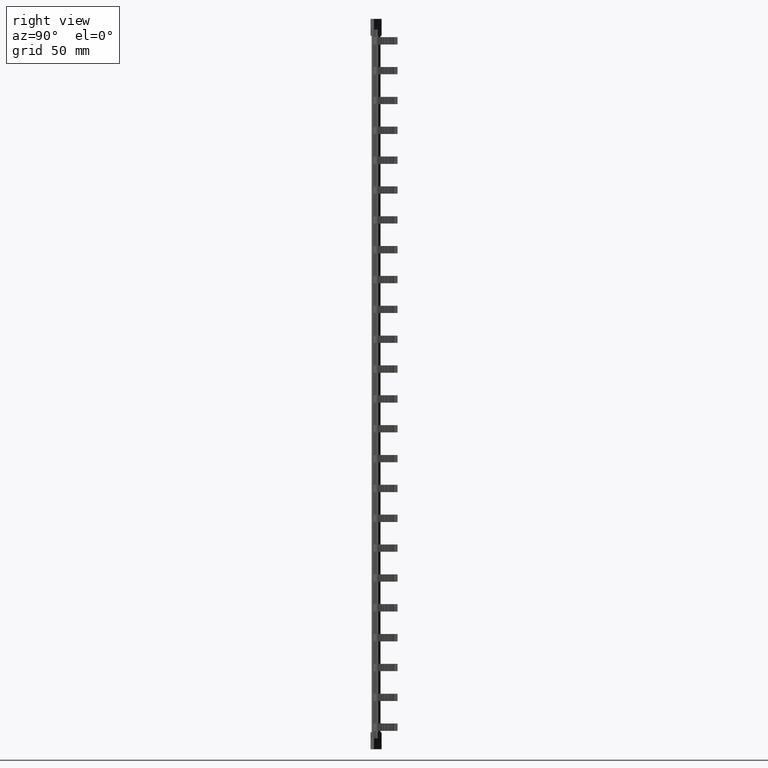
[diagram: clean part render]
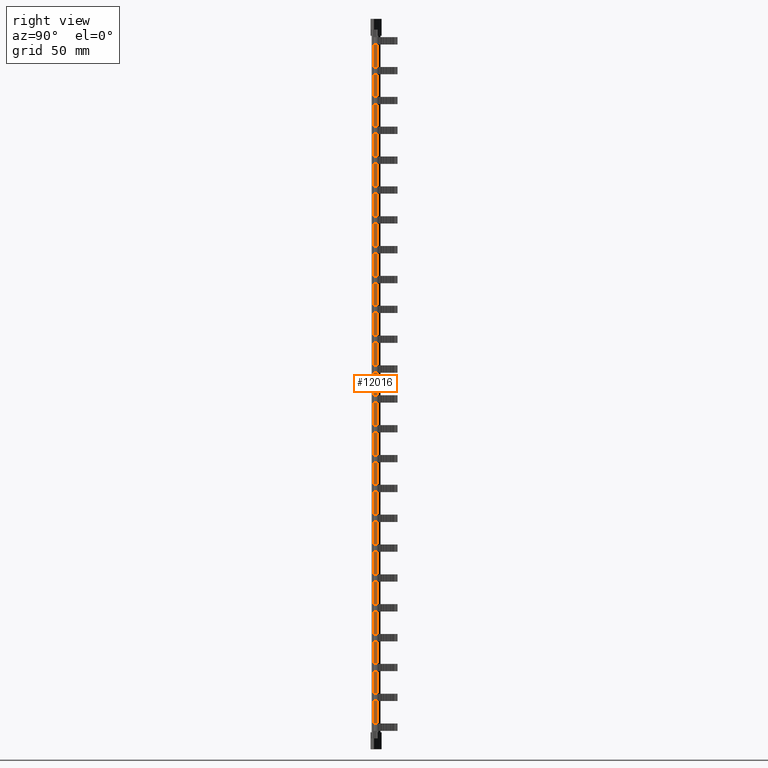
[diagram: same view with one face highlighted and labeled with its STEP entity id]
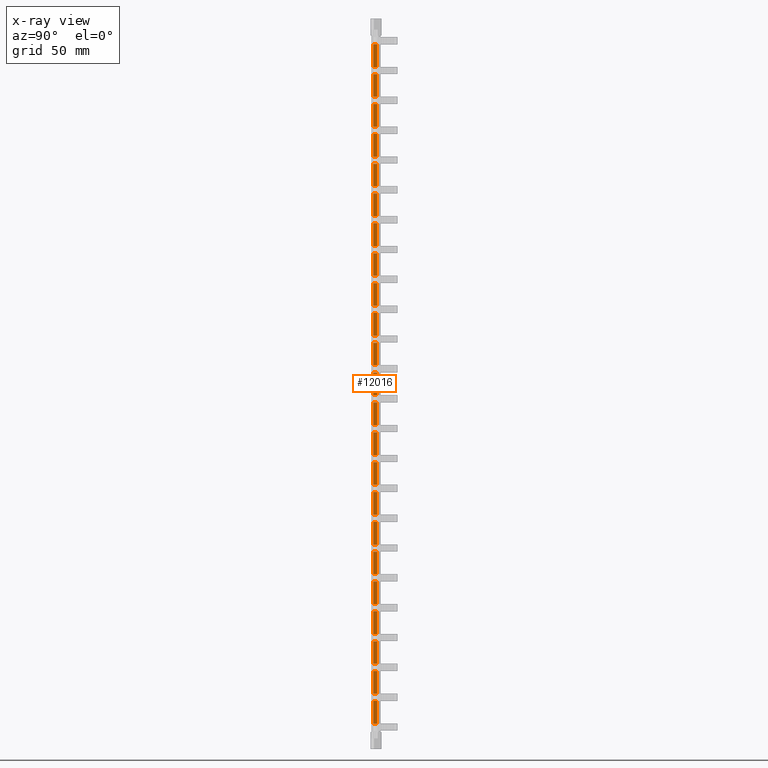
[diagram: x-ray of the same camera — body ghosted, the highlighted face saturated]
A machine part, right view. The second image highlights one B-rep face of the part: STEP entity #12016.
The next image is the same camera in x-ray: the body ghosted, the highlighted face saturated — about 0% of this face is hidden behind the body in this view.
In plain terms, the highlighted planar face has unit normal (-1, 0, 0).
Its self-contained STEP definition (entity closure, byte-faithful):
#585 = EDGE_CURVE ( 'NONE', #30921, #30993, #25465, .T. ) ;
#597 = EDGE_CURVE ( 'NONE', #28110, #31010, #25457, .T. ) ;
#607 = EDGE_CURVE ( 'NONE', #30948, #30979, #25491, .T. ) ;
#623 = EDGE_CURVE ( 'NONE', #30917, #30931, #25641, .T. ) ;
#624 = EDGE_CURVE ( 'NONE', #31019, #30921, #25618, .T. ) ;
#635 = EDGE_CURVE ( 'NONE', #31010, #30959, #25601, .T. ) ;
#636 = EDGE_CURVE ( 'NONE', #30980, #30937, #25694, .T. ) ;
#637 = EDGE_CURVE ( 'NONE', #30983, #30929, #25658, .T. ) ;
#641 = EDGE_CURVE ( 'NONE', #30993, #30990, #25646, .T. ) ;
#666 = EDGE_CURVE ( 'NONE', #30937, #30933, #25910, .T. ) ;
#668 = EDGE_CURVE ( 'NONE', #30979, #30917, #25875, .T. ) ;
#669 = EDGE_CURVE ( 'NONE', #30923, #30983, #25850, .T. ) ;
#672 = EDGE_CURVE ( 'NONE', #30999, #30934, #25907, .T. ) ;
#674 = EDGE_CURVE ( 'NONE', #30955, #30956, #25919, .T. ) ;
#675 = EDGE_CURVE ( 'NONE', #30940, #30939, #25848, .T. ) ;
#688 = EDGE_CURVE ( 'NONE', #30929, #30963, #25988, .T. ) ;
#691 = EDGE_CURVE ( 'NONE', #31026, #30954, #25954, .T. ) ;
#694 = EDGE_CURVE ( 'NONE', #30954, #30972, #25943, .T. ) ;
#701 = EDGE_CURVE ( 'NONE', #30956, #30940, #26026, .T. ) ;
#702 = EDGE_CURVE ( 'NONE', #30957, #30919, #26075, .T. ) ;
#711 = EDGE_CURVE ( 'NONE', #30941, #30961, #26168, .T. ) ;
#715 = EDGE_CURVE ( 'NONE', #31003, #30974, #26122, .T. ) ;
#717 = EDGE_CURVE ( 'NONE', #30934, #30941, #26206, .T. ) ;
#720 = EDGE_CURVE ( 'NONE', #30697, #30729, #26115, .T. ) ;
#725 = EDGE_CURVE ( 'NONE', #31023, #30925, #26224, .T. ) ;
#726 = EDGE_CURVE ( 'NONE', #30994, #31020, #26265, .T. ) ;
#727 = EDGE_CURVE ( 'NONE', #30655, #30707, #26289, .T. ) ;
#729 = EDGE_CURVE ( 'NONE', #30919, #30920, #26274, .T. ) ;
#735 = EDGE_CURVE ( 'NONE', #30972, #30938, #26259, .T. ) ;
#736 = EDGE_CURVE ( 'NONE', #30974, #30978, #26215, .T. ) ;
#738 = EDGE_CURVE ( 'NONE', #30967, #30966, #26254, .T. ) ;
#741 = EDGE_CURVE ( 'NONE', #31016, #30965, #26343, .T. ) ;
#743 = EDGE_CURVE ( 'NONE', #30933, #30949, #26341, .T. ) ;
#745 = EDGE_CURVE ( 'NONE', #30925, #30976, #26327, .T. ) ;
#747 = EDGE_CURVE ( 'NONE', #30978, #30945, #26334, .T. ) ;
#749 = EDGE_CURVE ( 'NONE', #30989, #30957, #26378, .T. ) ;
#751 = EDGE_CURVE ( 'NONE', #30927, #31023, #26308, .T. ) ;
#754 = EDGE_CURVE ( 'NONE', #30707, #31025, #26414, .T. ) ;
#760 = EDGE_CURVE ( 'NONE', #30973, #30975, #26464, .T. ) ;
#762 = EDGE_CURVE ( 'NONE', #31002, #30992, #26469, .T. ) ;
#763 = EDGE_CURVE ( 'NONE', #30704, #30655, #26482, .T. ) ;
#766 = EDGE_CURVE ( 'NONE', #30730, #30722, #26555, .T. ) ;
#769 = EDGE_CURVE ( 'NONE', #30654, #30701, #26485, .T. ) ;
#771 = EDGE_CURVE ( 'NONE', #30656, #30718, #26558, .T. ) ;
#772 = EDGE_CURVE ( 'NONE', #30702, #30679, #26487, .T. ) ;
#776 = EDGE_CURVE ( 'NONE', #30725, #30708, #26560, .T. ) ;
#777 = EDGE_CURVE ( 'NONE', #30726, #30686, #26569, .T. ) ;
#782 = EDGE_CURVE ( 'NONE', #30992, #30967, #26498, .T. ) ;
#787 = EDGE_CURVE ( 'NONE', #30709, #30621, #26596, .T. ) ;
#797 = EDGE_CURVE ( 'NONE', #30690, #30728, #25140, .T. ) ;
#798 = EDGE_CURVE ( 'NONE', #30995, #30987, #25145, .T. ) ;
#801 = EDGE_CURVE ( 'NONE', #30729, #30714, #25152, .T. ) ;
#803 = EDGE_CURVE ( 'NONE', #30700, #30727, #25141, .T. ) ;
#808 = EDGE_CURVE ( 'NONE', #30701, #30706, #25123, .T. ) ;
#811 = EDGE_CURVE ( 'NONE', #30692, #30702, #25132, .T. ) ;
#818 = EDGE_CURVE ( 'NONE', #30975, #31016, #25195, .T. ) ;
#820 = EDGE_CURVE ( 'NONE', #30706, #30684, #25169, .T. ) ;
#821 = EDGE_CURVE ( 'NONE', #30693, #30697, #25202, .T. ) ;
#822 = EDGE_CURVE ( 'NONE', #31020, #30995, #25205, .T. ) ;
#823 = EDGE_CURVE ( 'NONE', #30708, #30724, #25176, .T. ) ;
#828 = EDGE_CURVE ( 'NONE', #30653, #30719, #25230, .T. ) ;
#831 = EDGE_CURVE ( 'NONE', #30722, #22495, #25245, .T. ) ;
#838 = EDGE_CURVE ( 'NONE', #30686, #30709, #25297, .T. ) ;
#841 = EDGE_CURVE ( 'NONE', #30720, #30688, #25261, .T. ) ;
#855 = EDGE_CURVE ( 'NONE', #30718, #30690, #25316, .T. ) ;
#859 = EDGE_CURVE ( 'NONE', #30724, #30715, #25343, .T. ) ;
#874 = EDGE_CURVE ( 'NONE', #30695, #30732, #34278, .T. ) ;
#880 = EDGE_CURVE ( 'NONE', #30679, #30683, #34274, .T. ) ;
#881 = EDGE_CURVE ( 'NONE', #30719, #30700, #34359, .T. ) ;
#884 = EDGE_CURVE ( 'NONE', #30732, #30720, #34346, .T. ) ;
#1071 = CARTESIAN_POINT ( 'NONE',  ( 10.37430495582721900, 3.100000585347644200, 209.0000000000000000 ) ) ;
#1096 = CARTESIAN_POINT ( 'NONE',  ( 10.37430495582721900, 3.100000585347644200, -199.9999999999999100 ) ) ;
#1128 = CARTESIAN_POINT ( 'NONE',  ( 10.37430495582721900, 1.100000111734499500, -142.9500000000000200 ) ) ;
#1129 = CARTESIAN_POINT ( 'NONE',  ( 10.37430495582721900, 1.100000111734499500, -19.74999999999998900 ) ) ;
#1133 = CARTESIAN_POINT ( 'NONE',  ( 10.37430495582721900, 1.100000111734499500, -59.25000000000001400 ) ) ;
#1135 = CARTESIAN_POINT ( 'NONE',  ( 10.37430495582721900, 1.100000111734499500, -178.1500000000000300 ) ) ;
#1140 = CARTESIAN_POINT ( 'NONE',  ( 10.37430495582721900, 3.092390552839102500, -178.1500000000000300 ) ) ;
#1142 = CARTESIAN_POINT ( 'NONE',  ( 10.37430495582721900, 1.100000111734499500, -125.3500000000000200 ) ) ;
#1146 = CARTESIAN_POINT ( 'NONE',  ( 10.37430495582721900, 1.100000111734499500, -94.45000000000001700 ) ) ;
#1148 = CARTESIAN_POINT ( 'NONE',  ( 10.37430495582721900, 3.092390552839102500, -107.7500000000000100 ) ) ;
#1149 = CARTESIAN_POINT ( 'NONE',  ( 10.37430495582721900, 3.092390552839102500, -125.3500000000000200 ) ) ;
#1156 = CARTESIAN_POINT ( 'NONE',  ( 10.37430495582721900, 1.100000111734499500, -107.7500000000000100 ) ) ;
#1163 = CARTESIAN_POINT ( 'NONE',  ( 10.37430495582721900, 3.092390552839102500, -37.34999999999999400 ) ) ;
#1164 = CARTESIAN_POINT ( 'NONE',  ( 10.37430495582721900, 3.092390552839102500, -76.85000000000002300 ) ) ;
#1167 = CARTESIAN_POINT ( 'NONE',  ( 10.37430495582721900, 1.100000111734499500, -37.34999999999999400 ) ) ;
#1168 = CARTESIAN_POINT ( 'NONE',  ( 10.37430495582721900, 3.092390552839102500, -90.15000000000000600 ) ) ;
#1171 = CARTESIAN_POINT ( 'NONE',  ( 10.37430495582721900, 3.092390552839102500, -112.0500000000000300 ) ) ;
#1181 = CARTESIAN_POINT ( 'NONE',  ( 10.37430495582721900, 1.100000111734499500, -182.4500000000000500 ) ) ;
#1184 = CARTESIAN_POINT ( 'NONE',  ( 10.37430495582721900, 3.092390552839102500, -54.94999999999999600 ) ) ;
#1186 = CARTESIAN_POINT ( 'NONE',  ( 10.37430495582721900, 3.092390552839102500, -72.54999999999999700 ) ) ;
#1190 = CARTESIAN_POINT ( 'NONE',  ( 10.37430495582721900, 3.092390552839102500, -164.8499999999999900 ) ) ;
#1192 = CARTESIAN_POINT ( 'NONE',  ( 10.37430495582721900, 3.092390552839102500, -19.74999999999998900 ) ) ;
#1193 = CARTESIAN_POINT ( 'NONE',  ( 10.37430495582721900, 3.092390552839102500, -41.65000000000000600 ) ) ;
#1195 = CARTESIAN_POINT ( 'NONE',  ( 10.37430495582721900, 1.100000111734499500, 11.14999999999997900 ) ) ;
#1196 = CARTESIAN_POINT ( 'NONE',  ( 10.37430495582721900, 3.092390552839102500, 28.74999999999998200 ) ) ;
#1197 = CARTESIAN_POINT ( 'NONE',  ( 10.37430495582721900, 1.100000111734499500, 33.04999999999999700 ) ) ;
#1202 = CARTESIAN_POINT ( 'NONE',  ( 10.37430495582721900, 1.100000111734499500, -2.149999999999985300 ) ) ;
#1203 = CARTESIAN_POINT ( 'NONE',  ( 10.37430495582721900, 1.100000111734499500, -6.449999999999997500 ) ) ;
#1204 = CARTESIAN_POINT ( 'NONE',  ( 10.37430495582721900, 1.100000111734499500, -129.6499999999999800 ) ) ;
#1206 = CARTESIAN_POINT ( 'NONE',  ( 10.37430495582721900, 3.092390552839102500, -6.449999999999997500 ) ) ;
#1207 = CARTESIAN_POINT ( 'NONE',  ( 10.37430495582721900, 3.092390552839102500, 15.44999999999999200 ) ) ;
#1209 = CARTESIAN_POINT ( 'NONE',  ( 10.37430495582721900, 1.100000111734499500, -76.85000000000000900 ) ) ;
#1210 = CARTESIAN_POINT ( 'NONE',  ( 10.37430495582721900, 1.100000111734499500, -90.15000000000000600 ) ) ;
#1211 = CARTESIAN_POINT ( 'NONE',  ( 10.37430495582721900, 1.100000111734499500, -160.5500000000000400 ) ) ;
#1212 = CARTESIAN_POINT ( 'NONE',  ( 10.37430495582721900, 3.092390552839102500, -2.149999999999985300 ) ) ;
#1213 = CARTESIAN_POINT ( 'NONE',  ( 10.37430495582721900, 3.092390552839102500, 33.04999999999999700 ) ) ;
#1218 = CARTESIAN_POINT ( 'NONE',  ( 10.37430495582721900, 3.092390552839102500, -24.05000000000000100 ) ) ;
#1220 = CARTESIAN_POINT ( 'NONE',  ( 10.37430495582721900, 1.100000111734499500, -41.65000000000000600 ) ) ;
#1221 = CARTESIAN_POINT ( 'NONE',  ( 10.37430495582721900, 3.092390552839102500, -160.5500000000000400 ) ) ;
#1222 = CARTESIAN_POINT ( 'NONE',  ( 10.37430495582721900, 1.100000111734499500, -72.54999999999999700 ) ) ;
#1223 = CARTESIAN_POINT ( 'NONE',  ( 10.37430495582721900, 1.100000111734499500, 28.74999999999998200 ) ) ;
#1224 = CARTESIAN_POINT ( 'NONE',  ( 10.37430495582721900, 3.092390552839102500, -147.2500000000000600 ) ) ;
#1225 = CARTESIAN_POINT ( 'NONE',  ( 10.37430495582721900, 1.100000111734499500, -112.0500000000000300 ) ) ;
#1226 = CARTESIAN_POINT ( 'NONE',  ( 10.37430495582721900, 3.092390552839102500, 11.14999999999997900 ) ) ;
#1227 = CARTESIAN_POINT ( 'NONE',  ( 10.37430495582721900, 3.092390552839102500, -195.7500000000000300 ) ) ;
#1228 = CARTESIAN_POINT ( 'NONE',  ( 10.37430495582721900, 3.092390552839102500, -94.45000000000001700 ) ) ;
#1230 = CARTESIAN_POINT ( 'NONE',  ( 10.37430495582721900, 1.100000111734499500, -147.2500000000000600 ) ) ;
#1231 = CARTESIAN_POINT ( 'NONE',  ( 10.37430495582721900, 3.092390552839102500, -142.9500000000000200 ) ) ;
#1233 = CARTESIAN_POINT ( 'NONE',  ( 10.37430495582721900, 3.092390552839102500, -129.6499999999999800 ) ) ;
#1236 = CARTESIAN_POINT ( 'NONE',  ( 10.37430495582721900, 3.092390552839102500, -182.4500000000000500 ) ) ;
#1237 = CARTESIAN_POINT ( 'NONE',  ( 10.37430495582721900, 3.092390552839102500, -59.25000000000001400 ) ) ;
#1239 = CARTESIAN_POINT ( 'NONE',  ( 10.37430495582721900, 1.100000111734499500, 50.64999999999999900 ) ) ;
#1243 = CARTESIAN_POINT ( 'NONE',  ( 10.37430495582721900, 1.100000111734499500, 15.44999999999999200 ) ) ;
#1246 = CARTESIAN_POINT ( 'NONE',  ( 10.37430495582721900, 1.100000111734499500, -24.05000000000000100 ) ) ;
#1253 = CARTESIAN_POINT ( 'NONE',  ( 10.37430495582721900, 1.100000111734499500, -164.8499999999999900 ) ) ;
#1254 = CARTESIAN_POINT ( 'NONE',  ( 10.37430495582721900, 1.100000111734499500, -195.7500000000000300 ) ) ;
#1255 = CARTESIAN_POINT ( 'NONE',  ( 10.37430495582721900, 1.100000111734499500, -54.94999999999999600 ) ) ;
#1488 = CARTESIAN_POINT ( 'NONE',  ( 10.37430495582721900, 1.100000111734499500, 191.4500000000000200 ) ) ;
#1497 = CARTESIAN_POINT ( 'NONE',  ( 10.37430495582721900, 3.092390552839102500, 99.15000000000003400 ) ) ;
#1500 = CARTESIAN_POINT ( 'NONE',  ( 10.37430495582721900, 1.100000111734499500, 85.85000000000000900 ) ) ;
#1504 = CARTESIAN_POINT ( 'NONE',  ( 10.37430495582721900, 1.100000111734499500, 46.34999999999997300 ) ) ;
#1506 = CARTESIAN_POINT ( 'NONE',  ( 10.37430495582721900, 1.100000111734499500, 187.1500000000000100 ) ) ;
#1507 = CARTESIAN_POINT ( 'NONE',  ( 10.37430495582721900, 1.100000111734499500, 116.7499999999999900 ) ) ;
#1511 = CARTESIAN_POINT ( 'NONE',  ( 10.37430495582721900, 3.092390552839102500, 50.64999999999999900 ) ) ;
#1513 = CARTESIAN_POINT ( 'NONE',  ( 10.37430495582721900, 1.100000111734499500, 151.9499999999999900 ) ) ;
#1515 = CARTESIAN_POINT ( 'NONE',  ( 10.37430495582721900, 3.092390552839102500, 138.6500000000000100 ) ) ;
#1524 = CARTESIAN_POINT ( 'NONE',  ( 10.37430495582721900, 3.092390552839102500, 81.54999999999999700 ) ) ;
#1525 = CARTESIAN_POINT ( 'NONE',  ( 10.37430495582721900, 3.092390552839102500, 156.2500000000000000 ) ) ;
#1530 = CARTESIAN_POINT ( 'NONE',  ( 10.37430495582721900, 3.092390552839102500, 191.4500000000000200 ) ) ;
#1531 = CARTESIAN_POINT ( 'NONE',  ( 10.37430495582721900, 1.100000111734499500, 121.0500000000000300 ) ) ;
#1532 = CARTESIAN_POINT ( 'NONE',  ( 10.37430495582721900, 1.100000111734499500, 63.95000000000001000 ) ) ;
#1533 = CARTESIAN_POINT ( 'NONE',  ( 10.37430495582721900, 3.092390552839102500, 63.94999999999999600 ) ) ;
#1534 = CARTESIAN_POINT ( 'NONE',  ( 10.37430495582721900, 3.092390552839102500, 187.1500000000000100 ) ) ;
#1535 = CARTESIAN_POINT ( 'NONE',  ( 10.37430495582721900, 3.092390552839102500, 85.85000000000000900 ) ) ;
#1536 = CARTESIAN_POINT ( 'NONE',  ( 10.37430495582721900, 3.092390552839102500, 169.5500000000000100 ) ) ;
#1537 = CARTESIAN_POINT ( 'NONE',  ( 10.37430495582721900, 1.100000111734499500, 134.3500000000000500 ) ) ;
#1539 = CARTESIAN_POINT ( 'NONE',  ( 10.37430495582721900, 1.100000111734499500, 81.54999999999998300 ) ) ;
#1541 = CARTESIAN_POINT ( 'NONE',  ( 10.37430495582721900, 3.092390552839102500, 103.4500000000000200 ) ) ;
#1546 = CARTESIAN_POINT ( 'NONE',  ( 10.37430495582721900, 3.092390552839102500, 46.34999999999998700 ) ) ;
#1559 = CARTESIAN_POINT ( 'NONE',  ( 10.37430495582721900, 1.100000111734499500, 68.25000000000000000 ) ) ;
#1560 = CARTESIAN_POINT ( 'NONE',  ( 10.37430495582721900, 3.092390552839102500, 116.7499999999999900 ) ) ;
#1563 = CARTESIAN_POINT ( 'NONE',  ( 10.37430495582721900, 3.092390552839102500, 173.8499999999999900 ) ) ;
#1564 = CARTESIAN_POINT ( 'NONE',  ( 10.37430495582721900, 1.100000111734499500, 156.2500000000000000 ) ) ;
#1566 = CARTESIAN_POINT ( 'NONE',  ( 10.37430495582721900, 1.100000111734499500, 204.7500000000000600 ) ) ;
#1574 = CARTESIAN_POINT ( 'NONE',  ( 10.37430495582721900, 3.092390552839102500, 68.25000000000000000 ) ) ;
#1582 = CARTESIAN_POINT ( 'NONE',  ( 10.37430495582721900, 1.100000111734499500, 99.15000000000004800 ) ) ;
#1591 = CARTESIAN_POINT ( 'NONE',  ( 10.37430495582721900, 1.100000111734499500, 173.8499999999999900 ) ) ;
#1595 = CARTESIAN_POINT ( 'NONE',  ( 10.37430495582721900, 3.092390552839102500, 151.9500000000000200 ) ) ;
#1598 = CARTESIAN_POINT ( 'NONE',  ( 10.37430495582721900, 3.092390552839102500, 134.3500000000000200 ) ) ;
#1602 = CARTESIAN_POINT ( 'NONE',  ( 10.37430495582721900, 3.092390552839102500, 121.0500000000000300 ) ) ;
#1611 = CARTESIAN_POINT ( 'NONE',  ( 10.37430495582721900, 1.100000111734499500, 169.5500000000000100 ) ) ;
#1613 = CARTESIAN_POINT ( 'NONE',  ( 10.37430495582721900, 3.092390552839102500, 204.7500000000000600 ) ) ;
#1614 = CARTESIAN_POINT ( 'NONE',  ( 10.37430495582721900, 1.100000111734499500, 138.6500000000000100 ) ) ;
#2071 = CARTESIAN_POINT ( 'NONE',  ( 10.37430495582721900, 3.092390552839104200, -199.9999999999999400 ) ) ;
#2339 = CARTESIAN_POINT ( 'NONE',  ( 10.37430495582721900, 1.100000111734499500, 103.4500000000000200 ) ) ;
#3102 = CARTESIAN_POINT ( 'NONE',  ( 10.37430495582721900, 3.092390552839104200, 209.0000000000000600 ) ) ;
#4745 = EDGE_CURVE ( 'NONE', #30704, #30965, #19391, .T. ) ;
#4756 = EDGE_CURVE ( 'NONE', #30989, #30963, #19451, .T. ) ;
#4774 = EDGE_CURVE ( 'NONE', #30955, #30938, #19500, .T. ) ;
#4778 = EDGE_CURVE ( 'NONE', #31003, #30920, #19494, .T. ) ;
#4782 = EDGE_CURVE ( 'NONE', #31002, #30987, #19539, .T. ) ;
#4785 = EDGE_CURVE ( 'NONE', #30692, #30715, #19529, .T. ) ;
#4786 = EDGE_CURVE ( 'NONE', #30980, #30939, #19555, .T. ) ;
#4800 = EDGE_CURVE ( 'NONE', #30999, #30976, #19576, .T. ) ;
#4801 = EDGE_CURVE ( 'NONE', #30927, #30949, #19584, .T. ) ;
#4802 = EDGE_CURVE ( 'NONE', #30831, #28110, #19575, .T. ) ;
#4823 = EDGE_CURVE ( 'NONE', #30923, #30961, #19687, .T. ) ;
#4829 = EDGE_CURVE ( 'NONE', #30973, #30966, #19662, .T. ) ;
#4830 = EDGE_CURVE ( 'NONE', #30695, #30621, #19680, .T. ) ;
#4832 = EDGE_CURVE ( 'NONE', #22495, #30836, #19671, .T. ) ;
#4833 = EDGE_CURVE ( 'NONE', #30726, #30684, #19695, .T. ) ;
#4834 = EDGE_CURVE ( 'NONE', #30693, #31025, #19685, .T. ) ;
#4835 = EDGE_CURVE ( 'NONE', #30730, #30683, #19742, .T. ) ;
#4838 = EDGE_CURVE ( 'NONE', #30994, #30945, #19738, .T. ) ;
#4839 = EDGE_CURVE ( 'NONE', #30656, #30688, #19709, .T. ) ;
#4841 = EDGE_CURVE ( 'NONE', #30653, #30728, #19717, .T. ) ;
#4843 = EDGE_CURVE ( 'NONE', #30725, #30727, #19745, .T. ) ;
#4844 = EDGE_CURVE ( 'NONE', #30654, #30714, #19747, .T. ) ;
#11260 = EDGE_CURVE ( 'NONE', #30948, #30959, #35999, .T. ) ;
#11265 = EDGE_CURVE ( 'NONE', #30831, #30836, #36031, .T. ) ;
#11268 = EDGE_CURVE ( 'NONE', #31026, #30990, #36036, .T. ) ;
#11305 = EDGE_CURVE ( 'NONE', #31019, #30931, #36161, .T. ) ;
#12016 = ADVANCED_FACE ( 'NONE', ( #13405 ), #13388, .F. ) ;
#13387 = DIRECTION ( 'NONE',  ( -1.000000000000000000, 0.0000000000000000000, 0.0000000000000000000 ) ) ;
#13388 = PLANE ( 'NONE',  #30263 ) ;
#13397 = CARTESIAN_POINT ( 'NONE',  ( 10.37430495582721900, 3.092390552839102000, -210.9240927571827300 ) ) ;
#13401 = DIRECTION ( 'NONE',  ( 0.0000000000000000000, 0.0000000000000000000, 1.000000000000000000 ) ) ;
#13405 = FACE_OUTER_BOUND ( 'NONE', #32920, .T. ) ;
#16313 = VECTOR ( 'NONE', #34358, 1000.000000000000000 ) ;
#16584 = VECTOR ( 'NONE', #34336, 1000.000000000000000 ) ;
#16677 = VECTOR ( 'NONE', #25495, 1000.000000000000000 ) ;
#16716 = VECTOR ( 'NONE', #25656, 1000.000000000000000 ) ;
#16721 = VECTOR ( 'NONE', #25600, 1000.000000000000000 ) ;
#16722 = VECTOR ( 'NONE', #25654, 1000.000000000000000 ) ;
#16726 = VECTOR ( 'NONE', #25488, 1000.000000000000000 ) ;
#16728 = VECTOR ( 'NONE', #25615, 1000.000000000000000 ) ;
#16730 = VECTOR ( 'NONE', #25508, 1000.000000000000000 ) ;
#16739 = VECTOR ( 'NONE', #25922, 1000.000000000000000 ) ;
#16750 = VECTOR ( 'NONE', #25890, 1000.000000000000000 ) ;
#16752 = VECTOR ( 'NONE', #25712, 1000.000000000000000 ) ;
#16754 = VECTOR ( 'NONE', #25914, 1000.000000000000000 ) ;
#16769 = VECTOR ( 'NONE', #25695, 1000.000000000000000 ) ;
#16775 = VECTOR ( 'NONE', #25860, 1000.000000000000000 ) ;
#16780 = VECTOR ( 'NONE', #25895, 1000.000000000000000 ) ;
#16790 = VECTOR ( 'NONE', #25862, 1000.000000000000000 ) ;
#16818 = VECTOR ( 'NONE', #26163, 1000.000000000000000 ) ;
#16824 = VECTOR ( 'NONE', #25930, 1000.000000000000000 ) ;
#16825 = VECTOR ( 'NONE', #26076, 1000.000000000000000 ) ;
#16831 = VECTOR ( 'NONE', #26187, 1000.000000000000000 ) ;
#16836 = VECTOR ( 'NONE', #26292, 1000.000000000000000 ) ;
#16839 = VECTOR ( 'NONE', #26082, 1000.000000000000000 ) ;
#16843 = VECTOR ( 'NONE', #26233, 1000.000000000000000 ) ;
#16847 = VECTOR ( 'NONE', #26028, 1000.000000000000000 ) ;
#16848 = VECTOR ( 'NONE', #26243, 1000.000000000000000 ) ;
#16851 = VECTOR ( 'NONE', #25958, 1000.000000000000000 ) ;
#16853 = VECTOR ( 'NONE', #26171, 1000.000000000000000 ) ;
#16863 = VECTOR ( 'NONE', #26137, 1000.000000000000000 ) ;
#16866 = VECTOR ( 'NONE', #26412, 1000.000000000000000 ) ;
#16875 = VECTOR ( 'NONE', #26443, 1000.000000000000000 ) ;
#16876 = VECTOR ( 'NONE', #26465, 1000.000000000000000 ) ;
#16881 = VECTOR ( 'NONE', #26278, 1000.000000000000000 ) ;
#16884 = VECTOR ( 'NONE', #26514, 1000.000000000000000 ) ;
#16885 = VECTOR ( 'NONE', #26571, 1000.000000000000000 ) ;
#16889 = VECTOR ( 'NONE', #26422, 1000.000000000000000 ) ;
#16892 = VECTOR ( 'NONE', #26294, 1000.000000000000000 ) ;
#16899 = VECTOR ( 'NONE', #26366, 1000.000000000000000 ) ;
#16903 = VECTOR ( 'NONE', #26335, 1000.000000000000000 ) ;
#16904 = VECTOR ( 'NONE', #26572, 1000.000000000000000 ) ;
#16905 = VECTOR ( 'NONE', #26346, 1000.000000000000000 ) ;
#16906 = VECTOR ( 'NONE', #26316, 1000.000000000000000 ) ;
#16907 = VECTOR ( 'NONE', #26408, 1000.000000000000000 ) ;
#16912 = VECTOR ( 'NONE', #26510, 1000.000000000000000 ) ;
#16913 = VECTOR ( 'NONE', #26364, 1000.000000000000000 ) ;
#16919 = VECTOR ( 'NONE', #26300, 1000.000000000000000 ) ;
#16925 = VECTOR ( 'NONE', #26310, 1000.000000000000000 ) ;
#16930 = VECTOR ( 'NONE', #26657, 1000.000000000000000 ) ;
#16934 = VECTOR ( 'NONE', #26505, 1000.000000000000000 ) ;
#16939 = VECTOR ( 'NONE', #25148, 1000.000000000000000 ) ;
#16946 = VECTOR ( 'NONE', #26501, 1000.000000000000000 ) ;
#16958 = VECTOR ( 'NONE', #25137, 1000.000000000000000 ) ;
#16959 = VECTOR ( 'NONE', #25163, 1000.000000000000000 ) ;
#16962 = VECTOR ( 'NONE', #26633, 1000.000000000000000 ) ;
#16967 = VECTOR ( 'NONE', #25146, 1000.000000000000000 ) ;
#16986 = VECTOR ( 'NONE', #25265, 1000.000000000000000 ) ;
#16991 = VECTOR ( 'NONE', #25246, 1000.000000000000000 ) ;
#16998 = VECTOR ( 'NONE', #25172, 1000.000000000000000 ) ;
#16999 = VECTOR ( 'NONE', #25226, 1000.000000000000000 ) ;
#17001 = VECTOR ( 'NONE', #25193, 1000.000000000000000 ) ;
#17003 = VECTOR ( 'NONE', #25173, 1000.000000000000000 ) ;
#17007 = VECTOR ( 'NONE', #25299, 1000.000000000000000 ) ;
#17012 = VECTOR ( 'NONE', #25182, 1000.000000000000000 ) ;
#17014 = VECTOR ( 'NONE', #25198, 1000.000000000000000 ) ;
#17017 = VECTOR ( 'NONE', #25257, 1000.000000000000000 ) ;
#17018 = VECTOR ( 'NONE', #25179, 1000.000000000000000 ) ;
#17037 = VECTOR ( 'NONE', #25306, 1000.000000000000000 ) ;
#17052 = VECTOR ( 'NONE', #25326, 1000.000000000000000 ) ;
#17250 = VECTOR ( 'NONE', #34292, 1000.000000000000000 ) ;
#19364 = DIRECTION ( 'NONE',  ( -0.0000000000000000000, -0.0000000000000000000, -1.000000000000000000 ) ) ;
#19391 = LINE ( 'NONE', #19404, #34928 ) ;
#19404 = CARTESIAN_POINT ( 'NONE',  ( 10.37430495582721900, 1.100000111734499500, -210.9240927571827300 ) ) ;
#19419 = CARTESIAN_POINT ( 'NONE',  ( 10.37430495582721900, 1.100000111734499500, -210.9240927571827300 ) ) ;
#19451 = LINE ( 'NONE', #19419, #34934 ) ;
#19458 = DIRECTION ( 'NONE',  ( -0.0000000000000000000, -0.0000000000000000000, -1.000000000000000000 ) ) ;
#19463 = DIRECTION ( 'NONE',  ( -0.0000000000000000000, -0.0000000000000000000, -1.000000000000000000 ) ) ;
#19475 = DIRECTION ( 'NONE',  ( -0.0000000000000000000, -0.0000000000000000000, -1.000000000000000000 ) ) ;
#19494 = LINE ( 'NONE', #19495, #35012 ) ;
#19495 = CARTESIAN_POINT ( 'NONE',  ( 10.37430495582721900, 1.100000111734499500, -210.9240927571827300 ) ) ;
#19498 = CARTESIAN_POINT ( 'NONE',  ( 10.37430495582721900, 1.100000111734499500, -210.9240927571827300 ) ) ;
#19500 = LINE ( 'NONE', #19498, #34993 ) ;
#19525 = CARTESIAN_POINT ( 'NONE',  ( 10.37430495582721900, 1.100000111734499500, -210.9240927571827300 ) ) ;
#19529 = LINE ( 'NONE', #19530, #34979 ) ;
#19530 = CARTESIAN_POINT ( 'NONE',  ( 10.37430495582721900, 1.100000111734499500, -210.9240927571827300 ) ) ;
#19533 = CARTESIAN_POINT ( 'NONE',  ( 10.37430495582721900, 1.100000111734499500, -210.9240927571827300 ) ) ;
#19538 = DIRECTION ( 'NONE',  ( -0.0000000000000000000, -0.0000000000000000000, -1.000000000000000000 ) ) ;
#19539 = LINE ( 'NONE', #19525, #34989 ) ;
#19547 = DIRECTION ( 'NONE',  ( -0.0000000000000000000, -0.0000000000000000000, -1.000000000000000000 ) ) ;
#19555 = LINE ( 'NONE', #19533, #35013 ) ;
#19556 = DIRECTION ( 'NONE',  ( -0.0000000000000000000, -0.0000000000000000000, -1.000000000000000000 ) ) ;
#19567 = CARTESIAN_POINT ( 'NONE',  ( 10.37430495582721900, 3.092390552839102000, -199.9999999999999100 ) ) ;
#19572 = CARTESIAN_POINT ( 'NONE',  ( 10.37430495582721900, 1.100000111734499500, -210.9240927571827300 ) ) ;
#19575 = LINE ( 'NONE', #19567, #35011 ) ;
#19576 = LINE ( 'NONE', #19572, #35001 ) ;
#19577 = DIRECTION ( 'NONE',  ( -0.0000000000000000000, -0.0000000000000000000, -1.000000000000000000 ) ) ;
#19583 = DIRECTION ( 'NONE',  ( -0.0000000000000000000, -0.0000000000000000000, -1.000000000000000000 ) ) ;
#19584 = LINE ( 'NONE', #19594, #35009 ) ;
#19593 = DIRECTION ( 'NONE',  ( -0.0000000000000000000, -1.000000000000000000, 0.0000000000000000000 ) ) ;
#19594 = CARTESIAN_POINT ( 'NONE',  ( 10.37430495582721900, 1.100000111734499500, -210.9240927571827300 ) ) ;
#19662 = LINE ( 'NONE', #19683, #34973 ) ;
#19664 = DIRECTION ( 'NONE',  ( -0.0000000000000000000, -0.0000000000000000000, -1.000000000000000000 ) ) ;
#19669 = DIRECTION ( 'NONE',  ( -0.0000000000000000000, -0.0000000000000000000, -1.000000000000000000 ) ) ;
#19671 = LINE ( 'NONE', #19690, #35061 ) ;
#19676 = DIRECTION ( 'NONE',  ( -0.0000000000000000000, -0.0000000000000000000, -1.000000000000000000 ) ) ;
#19680 = LINE ( 'NONE', #19700, #34975 ) ;
#19683 = CARTESIAN_POINT ( 'NONE',  ( 10.37430495582721900, 1.100000111734499500, -210.9240927571827300 ) ) ;
#19685 = LINE ( 'NONE', #19744, #35049 ) ;
#19687 = LINE ( 'NONE', #19705, #35029 ) ;
#19688 = DIRECTION ( 'NONE',  ( -0.0000000000000000000, -0.0000000000000000000, -1.000000000000000000 ) ) ;
#19690 = CARTESIAN_POINT ( 'NONE',  ( 10.37430495582721900, 3.092390552839102000, 209.0000000000000600 ) ) ;
#19692 = DIRECTION ( 'NONE',  ( 0.0000000000000000000, 1.000000000000000000, -0.0000000000000000000 ) ) ;
#19695 = LINE ( 'NONE', #19701, #35050 ) ;
#19700 = CARTESIAN_POINT ( 'NONE',  ( 10.37430495582721900, 1.100000111734499500, -210.9240927571827300 ) ) ;
#19701 = CARTESIAN_POINT ( 'NONE',  ( 10.37430495582721900, 1.100000111734499500, -210.9240927571827300 ) ) ;
#19705 = CARTESIAN_POINT ( 'NONE',  ( 10.37430495582721900, 1.100000111734499500, -210.9240927571827300 ) ) ;
#19709 = LINE ( 'NONE', #19753, #35036 ) ;
#19711 = DIRECTION ( 'NONE',  ( -0.0000000000000000000, -0.0000000000000000000, -1.000000000000000000 ) ) ;
#19712 = DIRECTION ( 'NONE',  ( -0.0000000000000000000, -0.0000000000000000000, -1.000000000000000000 ) ) ;
#19717 = LINE ( 'NONE', #19741, #35057 ) ;
#19723 = DIRECTION ( 'NONE',  ( -0.0000000000000000000, -0.0000000000000000000, -1.000000000000000000 ) ) ;
#19729 = CARTESIAN_POINT ( 'NONE',  ( 10.37430495582721900, 1.100000111734499500, -210.9240927571827300 ) ) ;
#19732 = DIRECTION ( 'NONE',  ( -0.0000000000000000000, -0.0000000000000000000, -1.000000000000000000 ) ) ;
#19733 = CARTESIAN_POINT ( 'NONE',  ( 10.37430495582721900, 1.100000111734499500, -210.9240927571827300 ) ) ;
#19735 = CARTESIAN_POINT ( 'NONE',  ( 10.37430495582721900, 1.100000111734499500, -210.9240927571827300 ) ) ;
#19736 = DIRECTION ( 'NONE',  ( -0.0000000000000000000, -0.0000000000000000000, -1.000000000000000000 ) ) ;
#19738 = LINE ( 'NONE', #19754, #35051 ) ;
#19741 = CARTESIAN_POINT ( 'NONE',  ( 10.37430495582721900, 1.100000111734499500, -210.9240927571827300 ) ) ;
#19742 = LINE ( 'NONE', #19733, #35055 ) ;
#19744 = CARTESIAN_POINT ( 'NONE',  ( 10.37430495582721900, 1.100000111734499500, -210.9240927571827300 ) ) ;
#19745 = LINE ( 'NONE', #19729, #35044 ) ;
#19746 = DIRECTION ( 'NONE',  ( -0.0000000000000000000, -0.0000000000000000000, -1.000000000000000000 ) ) ;
#19747 = LINE ( 'NONE', #19735, #35056 ) ;
#19750 = DIRECTION ( 'NONE',  ( -0.0000000000000000000, -0.0000000000000000000, -1.000000000000000000 ) ) ;
#19753 = CARTESIAN_POINT ( 'NONE',  ( 10.37430495582721900, 1.100000111734499500, -210.9240927571827300 ) ) ;
#19754 = CARTESIAN_POINT ( 'NONE',  ( 10.37430495582721900, 1.100000111734499500, -210.9240927571827300 ) ) ;
#22495 = VERTEX_POINT ( 'NONE', #3102 ) ;
#25123 = LINE ( 'NONE', #25127, #17001 ) ;
#25127 = CARTESIAN_POINT ( 'NONE',  ( 10.37430495582721900, 3.092390552839102500, -210.9240927571827300 ) ) ;
#25129 = CARTESIAN_POINT ( 'NONE',  ( 10.37430495582721900, 3.092390552839102000, 68.25000000000000000 ) ) ;
#25131 = CARTESIAN_POINT ( 'NONE',  ( 10.37430495582721900, 3.092390552839102000, -2.149999999999985300 ) ) ;
#25132 = LINE ( 'NONE', #25144, #17012 ) ;
#25137 = DIRECTION ( 'NONE',  ( -0.0000000000000000000, -1.000000000000000000, 0.0000000000000000000 ) ) ;
#25140 = LINE ( 'NONE', #25155, #16939 ) ;
#25141 = LINE ( 'NONE', #25165, #16967 ) ;
#25144 = CARTESIAN_POINT ( 'NONE',  ( 10.37430495582721900, 3.092390552839102000, 187.1500000000000100 ) ) ;
#25145 = LINE ( 'NONE', #25131, #16959 ) ;
#25146 = DIRECTION ( 'NONE',  ( -0.0000000000000000000, -1.000000000000000000, 0.0000000000000000000 ) ) ;
#25148 = DIRECTION ( 'NONE',  ( -0.0000000000000000000, -1.000000000000000000, 0.0000000000000000000 ) ) ;
#25152 = LINE ( 'NONE', #25129, #16958 ) ;
#25155 = CARTESIAN_POINT ( 'NONE',  ( 10.37430495582721900, 3.092390552839102000, 138.6500000000000300 ) ) ;
#25163 = DIRECTION ( 'NONE',  ( -0.0000000000000000000, -1.000000000000000000, 0.0000000000000000000 ) ) ;
#25165 = CARTESIAN_POINT ( 'NONE',  ( 10.37430495582721900, 3.092390552839102000, 156.2499999999999700 ) ) ;
#25169 = LINE ( 'NONE', #25170, #17003 ) ;
#25170 = CARTESIAN_POINT ( 'NONE',  ( 10.37430495582721900, 3.092390552839102000, 85.85000000000000900 ) ) ;
#25172 = DIRECTION ( 'NONE',  ( 0.0000000000000000000, 1.000000000000000000, -0.0000000000000000000 ) ) ;
#25173 = DIRECTION ( 'NONE',  ( -0.0000000000000000000, -1.000000000000000000, 0.0000000000000000000 ) ) ;
#25174 = CARTESIAN_POINT ( 'NONE',  ( 10.37430495582721900, 3.092390552839102500, -210.9240927571827300 ) ) ;
#25175 = CARTESIAN_POINT ( 'NONE',  ( 10.37430495582721900, 3.092390552839102000, 63.94999999999998200 ) ) ;
#25176 = LINE ( 'NONE', #25180, #17017 ) ;
#25179 = DIRECTION ( 'NONE',  ( 0.0000000000000000000, 0.0000000000000000000, 1.000000000000000000 ) ) ;
#25180 = CARTESIAN_POINT ( 'NONE',  ( 10.37430495582721900, 3.092390552839102500, -210.9240927571827300 ) ) ;
#25182 = DIRECTION ( 'NONE',  ( 0.0000000000000000000, 1.000000000000000000, -0.0000000000000000000 ) ) ;
#25193 = DIRECTION ( 'NONE',  ( 0.0000000000000000000, 0.0000000000000000000, 1.000000000000000000 ) ) ;
#25195 = LINE ( 'NONE', #25197, #17014 ) ;
#25197 = CARTESIAN_POINT ( 'NONE',  ( 10.37430495582721900, 3.092390552839102500, -210.9240927571827300 ) ) ;
#25198 = DIRECTION ( 'NONE',  ( 0.0000000000000000000, 0.0000000000000000000, 1.000000000000000000 ) ) ;
#25202 = LINE ( 'NONE', #25175, #16998 ) ;
#25205 = LINE ( 'NONE', #25174, #17018 ) ;
#25226 = DIRECTION ( 'NONE',  ( 0.0000000000000000000, 1.000000000000000000, -0.0000000000000000000 ) ) ;
#25227 = CARTESIAN_POINT ( 'NONE',  ( 10.37430495582721900, 3.092390552839102000, 151.9499999999999900 ) ) ;
#25230 = LINE ( 'NONE', #25227, #16999 ) ;
#25243 = CARTESIAN_POINT ( 'NONE',  ( 10.37430495582721900, 3.092390552839102500, -210.9240927571827300 ) ) ;
#25245 = LINE ( 'NONE', #25243, #16991 ) ;
#25246 = DIRECTION ( 'NONE',  ( 0.0000000000000000000, 0.0000000000000000000, 1.000000000000000000 ) ) ;
#25257 = DIRECTION ( 'NONE',  ( 0.0000000000000000000, 0.0000000000000000000, 1.000000000000000000 ) ) ;
#25261 = LINE ( 'NONE', #25279, #16986 ) ;
#25265 = DIRECTION ( 'NONE',  ( -0.0000000000000000000, -1.000000000000000000, 0.0000000000000000000 ) ) ;
#25279 = CARTESIAN_POINT ( 'NONE',  ( 10.37430495582721900, 3.092390552839102000, 121.0500000000000300 ) ) ;
#25294 = CARTESIAN_POINT ( 'NONE',  ( 10.37430495582721900, 3.092390552839102500, -210.9240927571827300 ) ) ;
#25297 = LINE ( 'NONE', #25294, #17007 ) ;
#25299 = DIRECTION ( 'NONE',  ( 0.0000000000000000000, 0.0000000000000000000, 1.000000000000000000 ) ) ;
#25305 = CARTESIAN_POINT ( 'NONE',  ( 10.37430495582721900, 3.092390552839102500, -210.9240927571827300 ) ) ;
#25306 = DIRECTION ( 'NONE',  ( -0.0000000000000000000, -1.000000000000000000, 0.0000000000000000000 ) ) ;
#25316 = LINE ( 'NONE', #25305, #17052 ) ;
#25326 = DIRECTION ( 'NONE',  ( 0.0000000000000000000, 0.0000000000000000000, 1.000000000000000000 ) ) ;
#25335 = CARTESIAN_POINT ( 'NONE',  ( 10.37430495582721900, 3.092390552839102000, 173.8500000000000200 ) ) ;
#25343 = LINE ( 'NONE', #25335, #17037 ) ;
#25457 = LINE ( 'NONE', #25480, #16677 ) ;
#25465 = LINE ( 'NONE', #25487, #16726 ) ;
#25480 = CARTESIAN_POINT ( 'NONE',  ( 10.37430495582721900, 3.092390552839102500, -210.9240927571827300 ) ) ;
#25487 = CARTESIAN_POINT ( 'NONE',  ( 10.37430495582721900, 3.092390552839102500, -210.9240927571827300 ) ) ;
#25488 = DIRECTION ( 'NONE',  ( 0.0000000000000000000, 0.0000000000000000000, 1.000000000000000000 ) ) ;
#25491 = LINE ( 'NONE', #25494, #16730 ) ;
#25494 = CARTESIAN_POINT ( 'NONE',  ( 10.37430495582721900, 3.092390552839102000, -182.4500000000000500 ) ) ;
#25495 = DIRECTION ( 'NONE',  ( 0.0000000000000000000, 0.0000000000000000000, 1.000000000000000000 ) ) ;
#25508 = DIRECTION ( 'NONE',  ( 0.0000000000000000000, 1.000000000000000000, -0.0000000000000000000 ) ) ;
#25600 = DIRECTION ( 'NONE',  ( 0.0000000000000000000, 1.000000000000000000, -0.0000000000000000000 ) ) ;
#25601 = LINE ( 'NONE', #25650, #16722 ) ;
#25615 = DIRECTION ( 'NONE',  ( -0.0000000000000000000, -1.000000000000000000, 0.0000000000000000000 ) ) ;
#25618 = LINE ( 'NONE', #25638, #16721 ) ;
#25634 = CARTESIAN_POINT ( 'NONE',  ( 10.37430495582721900, 3.092390552839102000, -178.1500000000000300 ) ) ;
#25638 = CARTESIAN_POINT ( 'NONE',  ( 10.37430495582721900, 3.092390552839102000, -164.8499999999999900 ) ) ;
#25641 = LINE ( 'NONE', #25634, #16728 ) ;
#25646 = LINE ( 'NONE', #25687, #16769 ) ;
#25650 = CARTESIAN_POINT ( 'NONE',  ( 10.37430495582721900, 3.092390552839102000, -195.7500000000000300 ) ) ;
#25654 = DIRECTION ( 'NONE',  ( -0.0000000000000000000, -1.000000000000000000, 0.0000000000000000000 ) ) ;
#25656 = DIRECTION ( 'NONE',  ( 0.0000000000000000000, 1.000000000000000000, -0.0000000000000000000 ) ) ;
#25658 = LINE ( 'NONE', #25723, #16752 ) ;
#25687 = CARTESIAN_POINT ( 'NONE',  ( 10.37430495582721900, 3.092390552839102000, -160.5500000000000400 ) ) ;
#25690 = CARTESIAN_POINT ( 'NONE',  ( 10.37430495582721900, 3.092390552839102000, -112.0500000000000400 ) ) ;
#25694 = LINE ( 'NONE', #25690, #16716 ) ;
#25695 = DIRECTION ( 'NONE',  ( -0.0000000000000000000, -1.000000000000000000, 0.0000000000000000000 ) ) ;
#25712 = DIRECTION ( 'NONE',  ( 0.0000000000000000000, 0.0000000000000000000, 1.000000000000000000 ) ) ;
#25723 = CARTESIAN_POINT ( 'NONE',  ( 10.37430495582721900, 3.092390552839102500, -210.9240927571827300 ) ) ;
#25838 = CARTESIAN_POINT ( 'NONE',  ( 10.37430495582721900, 3.092390552839102500, -210.9240927571827300 ) ) ;
#25848 = LINE ( 'NONE', #25897, #16750 ) ;
#25850 = LINE ( 'NONE', #25912, #16775 ) ;
#25853 = CARTESIAN_POINT ( 'NONE',  ( 10.37430495582721900, 3.092390552839102500, -210.9240927571827300 ) ) ;
#25857 = CARTESIAN_POINT ( 'NONE',  ( 10.37430495582721900, 3.092390552839102000, -76.85000000000002300 ) ) ;
#25860 = DIRECTION ( 'NONE',  ( 0.0000000000000000000, 1.000000000000000000, -0.0000000000000000000 ) ) ;
#25862 = DIRECTION ( 'NONE',  ( 0.0000000000000000000, 1.000000000000000000, -0.0000000000000000000 ) ) ;
#25875 = LINE ( 'NONE', #25838, #16754 ) ;
#25890 = DIRECTION ( 'NONE',  ( -0.0000000000000000000, -1.000000000000000000, 0.0000000000000000000 ) ) ;
#25895 = DIRECTION ( 'NONE',  ( 0.0000000000000000000, 0.0000000000000000000, 1.000000000000000000 ) ) ;
#25897 = CARTESIAN_POINT ( 'NONE',  ( 10.37430495582721900, 3.092390552839102000, -125.3500000000000200 ) ) ;
#25904 = CARTESIAN_POINT ( 'NONE',  ( 10.37430495582721900, 3.092390552839102000, -129.6499999999999800 ) ) ;
#25907 = LINE ( 'NONE', #25857, #16739 ) ;
#25910 = LINE ( 'NONE', #25853, #16780 ) ;
#25912 = CARTESIAN_POINT ( 'NONE',  ( 10.37430495582721900, 3.092390552839102000, -59.25000000000002800 ) ) ;
#25914 = DIRECTION ( 'NONE',  ( 0.0000000000000000000, 0.0000000000000000000, 1.000000000000000000 ) ) ;
#25919 = LINE ( 'NONE', #25904, #16790 ) ;
#25922 = DIRECTION ( 'NONE',  ( 0.0000000000000000000, 1.000000000000000000, -0.0000000000000000000 ) ) ;
#25929 = CARTESIAN_POINT ( 'NONE',  ( 10.37430495582721900, 3.092390552839102000, -54.94999999999999600 ) ) ;
#25930 = DIRECTION ( 'NONE',  ( -0.0000000000000000000, -1.000000000000000000, 0.0000000000000000000 ) ) ;
#25943 = LINE ( 'NONE', #26100, #16847 ) ;
#25954 = LINE ( 'NONE', #25956, #16851 ) ;
#25956 = CARTESIAN_POINT ( 'NONE',  ( 10.37430495582721900, 3.092390552839102000, -147.2500000000000600 ) ) ;
#25958 = DIRECTION ( 'NONE',  ( 0.0000000000000000000, 1.000000000000000000, -0.0000000000000000000 ) ) ;
#25988 = LINE ( 'NONE', #25929, #16824 ) ;
#26026 = LINE ( 'NONE', #26053, #16839 ) ;
#26028 = DIRECTION ( 'NONE',  ( 0.0000000000000000000, 0.0000000000000000000, 1.000000000000000000 ) ) ;
#26053 = CARTESIAN_POINT ( 'NONE',  ( 10.37430495582721900, 3.092390552839102500, -210.9240927571827300 ) ) ;
#26056 = CARTESIAN_POINT ( 'NONE',  ( 10.37430495582721900, 3.092390552839102500, -210.9240927571827300 ) ) ;
#26075 = LINE ( 'NONE', #26056, #16825 ) ;
#26076 = DIRECTION ( 'NONE',  ( 0.0000000000000000000, 0.0000000000000000000, 1.000000000000000000 ) ) ;
#26082 = DIRECTION ( 'NONE',  ( 0.0000000000000000000, 0.0000000000000000000, 1.000000000000000000 ) ) ;
#26100 = CARTESIAN_POINT ( 'NONE',  ( 10.37430495582721900, 3.092390552839102500, -210.9240927571827300 ) ) ;
#26115 = LINE ( 'NONE', #26135, #16853 ) ;
#26122 = LINE ( 'NONE', #26197, #16831 ) ;
#26135 = CARTESIAN_POINT ( 'NONE',  ( 10.37430495582721900, 3.092390552839102500, -210.9240927571827300 ) ) ;
#26137 = DIRECTION ( 'NONE',  ( 0.0000000000000000000, 0.0000000000000000000, 1.000000000000000000 ) ) ;
#26155 = CARTESIAN_POINT ( 'NONE',  ( 10.37430495582721900, 3.092390552839102500, -210.9240927571827300 ) ) ;
#26163 = DIRECTION ( 'NONE',  ( -0.0000000000000000000, -1.000000000000000000, 0.0000000000000000000 ) ) ;
#26168 = LINE ( 'NONE', #26190, #16818 ) ;
#26171 = DIRECTION ( 'NONE',  ( 0.0000000000000000000, 0.0000000000000000000, 1.000000000000000000 ) ) ;
#26187 = DIRECTION ( 'NONE',  ( 0.0000000000000000000, 1.000000000000000000, -0.0000000000000000000 ) ) ;
#26190 = CARTESIAN_POINT ( 'NONE',  ( 10.37430495582721900, 3.092390552839102000, -72.54999999999999700 ) ) ;
#26197 = CARTESIAN_POINT ( 'NONE',  ( 10.37430495582721900, 3.092390552839102000, -24.05000000000001500 ) ) ;
#26206 = LINE ( 'NONE', #26155, #16863 ) ;
#26215 = LINE ( 'NONE', #26217, #16905 ) ;
#26217 = CARTESIAN_POINT ( 'NONE',  ( 10.37430495582721900, 3.092390552839102500, -210.9240927571827300 ) ) ;
#26219 = CARTESIAN_POINT ( 'NONE',  ( 10.37430495582721900, 3.092390552839102000, 15.44999999999999200 ) ) ;
#26224 = LINE ( 'NONE', #26285, #16848 ) ;
#26229 = CARTESIAN_POINT ( 'NONE',  ( 10.37430495582721900, 3.092390552839102000, -6.450000000000011700 ) ) ;
#26233 = DIRECTION ( 'NONE',  ( 0.0000000000000000000, 1.000000000000000000, -0.0000000000000000000 ) ) ;
#26235 = CARTESIAN_POINT ( 'NONE',  ( 10.37430495582721900, 3.092390552839102500, -210.9240927571827300 ) ) ;
#26243 = DIRECTION ( 'NONE',  ( 0.0000000000000000000, 0.0000000000000000000, 1.000000000000000000 ) ) ;
#26250 = CARTESIAN_POINT ( 'NONE',  ( 10.37430495582721900, 3.092390552839102000, -37.34999999999999400 ) ) ;
#26254 = LINE ( 'NONE', #26219, #16913 ) ;
#26259 = LINE ( 'NONE', #26276, #16881 ) ;
#26265 = LINE ( 'NONE', #26229, #16843 ) ;
#26274 = LINE ( 'NONE', #26250, #16892 ) ;
#26276 = CARTESIAN_POINT ( 'NONE',  ( 10.37430495582721900, 3.092390552839102000, -142.9500000000000200 ) ) ;
#26278 = DIRECTION ( 'NONE',  ( -0.0000000000000000000, -1.000000000000000000, 0.0000000000000000000 ) ) ;
#26285 = CARTESIAN_POINT ( 'NONE',  ( 10.37430495582721900, 3.092390552839102500, -210.9240927571827300 ) ) ;
#26289 = LINE ( 'NONE', #26235, #16836 ) ;
#26292 = DIRECTION ( 'NONE',  ( 0.0000000000000000000, 0.0000000000000000000, 1.000000000000000000 ) ) ;
#26294 = DIRECTION ( 'NONE',  ( -0.0000000000000000000, -1.000000000000000000, 0.0000000000000000000 ) ) ;
#26300 = DIRECTION ( 'NONE',  ( -0.0000000000000000000, -1.000000000000000000, 0.0000000000000000000 ) ) ;
#26302 = CARTESIAN_POINT ( 'NONE',  ( 10.37430495582721900, 3.092390552839102000, 33.04999999999999700 ) ) ;
#26308 = LINE ( 'NONE', #26475, #16889 ) ;
#26310 = DIRECTION ( 'NONE',  ( -0.0000000000000000000, -1.000000000000000000, 0.0000000000000000000 ) ) ;
#26316 = DIRECTION ( 'NONE',  ( 0.0000000000000000000, 1.000000000000000000, -0.0000000000000000000 ) ) ;
#26327 = LINE ( 'NONE', #26388, #16919 ) ;
#26334 = LINE ( 'NONE', #26383, #16903 ) ;
#26335 = DIRECTION ( 'NONE',  ( -0.0000000000000000000, -1.000000000000000000, 0.0000000000000000000 ) ) ;
#26341 = LINE ( 'NONE', #26368, #16899 ) ;
#26343 = LINE ( 'NONE', #26302, #16925 ) ;
#26346 = DIRECTION ( 'NONE',  ( 0.0000000000000000000, 0.0000000000000000000, 1.000000000000000000 ) ) ;
#26348 = CARTESIAN_POINT ( 'NONE',  ( 10.37430495582721900, 3.092390552839102000, -41.65000000000002000 ) ) ;
#26364 = DIRECTION ( 'NONE',  ( -0.0000000000000000000, -1.000000000000000000, 0.0000000000000000000 ) ) ;
#26366 = DIRECTION ( 'NONE',  ( -0.0000000000000000000, -1.000000000000000000, 0.0000000000000000000 ) ) ;
#26368 = CARTESIAN_POINT ( 'NONE',  ( 10.37430495582721900, 3.092390552839102000, -107.7500000000000100 ) ) ;
#26378 = LINE ( 'NONE', #26348, #16906 ) ;
#26383 = CARTESIAN_POINT ( 'NONE',  ( 10.37430495582721900, 3.092390552839102000, -19.74999999999998900 ) ) ;
#26388 = CARTESIAN_POINT ( 'NONE',  ( 10.37430495582721900, 3.092390552839102000, -90.15000000000000600 ) ) ;
#26397 = CARTESIAN_POINT ( 'NONE',  ( 10.37430495582721900, 3.092390552839102000, 81.54999999999998300 ) ) ;
#26408 = DIRECTION ( 'NONE',  ( -0.0000000000000000000, -1.000000000000000000, 0.0000000000000000000 ) ) ;
#26412 = DIRECTION ( 'NONE',  ( 0.0000000000000000000, 1.000000000000000000, -0.0000000000000000000 ) ) ;
#26414 = LINE ( 'NONE', #26460, #16907 ) ;
#26422 = DIRECTION ( 'NONE',  ( 0.0000000000000000000, 1.000000000000000000, -0.0000000000000000000 ) ) ;
#26429 = CARTESIAN_POINT ( 'NONE',  ( 10.37430495582721900, 3.092390552839102000, 28.74999999999997200 ) ) ;
#26443 = DIRECTION ( 'NONE',  ( 0.0000000000000000000, 1.000000000000000000, -0.0000000000000000000 ) ) ;
#26456 = CARTESIAN_POINT ( 'NONE',  ( 10.37430495582721900, 3.092390552839102000, 46.34999999999997300 ) ) ;
#26460 = CARTESIAN_POINT ( 'NONE',  ( 10.37430495582721900, 3.092390552839102000, 50.64999999999999900 ) ) ;
#26464 = LINE ( 'NONE', #26429, #16866 ) ;
#26465 = DIRECTION ( 'NONE',  ( 0.0000000000000000000, 1.000000000000000000, -0.0000000000000000000 ) ) ;
#26469 = LINE ( 'NONE', #26471, #16875 ) ;
#26471 = CARTESIAN_POINT ( 'NONE',  ( 10.37430495582721900, 3.092390552839102000, 11.14999999999996500 ) ) ;
#26475 = CARTESIAN_POINT ( 'NONE',  ( 10.37430495582721900, 3.092390552839102000, -94.45000000000003100 ) ) ;
#26482 = LINE ( 'NONE', #26456, #16876 ) ;
#26485 = LINE ( 'NONE', #26397, #16884 ) ;
#26486 = CARTESIAN_POINT ( 'NONE',  ( 10.37430495582721900, 3.092390552839102000, 169.5500000000000100 ) ) ;
#26487 = LINE ( 'NONE', #26519, #16912 ) ;
#26498 = LINE ( 'NONE', #26536, #16930 ) ;
#26501 = DIRECTION ( 'NONE',  ( 0.0000000000000000000, 1.000000000000000000, -0.0000000000000000000 ) ) ;
#26505 = DIRECTION ( 'NONE',  ( 0.0000000000000000000, 1.000000000000000000, -0.0000000000000000000 ) ) ;
#26508 = CARTESIAN_POINT ( 'NONE',  ( 10.37430495582721900, 3.092390552839102000, 99.15000000000004800 ) ) ;
#26510 = DIRECTION ( 'NONE',  ( 0.0000000000000000000, 0.0000000000000000000, 1.000000000000000000 ) ) ;
#26513 = CARTESIAN_POINT ( 'NONE',  ( 10.37430495582721900, 3.092390552839102000, 134.3500000000000500 ) ) ;
#26514 = DIRECTION ( 'NONE',  ( 0.0000000000000000000, 1.000000000000000000, -0.0000000000000000000 ) ) ;
#26515 = CARTESIAN_POINT ( 'NONE',  ( 10.37430495582721900, 3.092390552839102000, 204.7500000000000600 ) ) ;
#26519 = CARTESIAN_POINT ( 'NONE',  ( 10.37430495582721900, 3.092390552839102500, -210.9240927571827300 ) ) ;
#26536 = CARTESIAN_POINT ( 'NONE',  ( 10.37430495582721900, 3.092390552839102500, -210.9240927571827300 ) ) ;
#26555 = LINE ( 'NONE', #26515, #16904 ) ;
#26558 = LINE ( 'NONE', #26513, #16885 ) ;
#26560 = LINE ( 'NONE', #26486, #16946 ) ;
#26569 = LINE ( 'NONE', #26508, #16934 ) ;
#26571 = DIRECTION ( 'NONE',  ( 0.0000000000000000000, 1.000000000000000000, -0.0000000000000000000 ) ) ;
#26572 = DIRECTION ( 'NONE',  ( 0.0000000000000000000, 1.000000000000000000, -0.0000000000000000000 ) ) ;
#26590 = CARTESIAN_POINT ( 'NONE',  ( 10.37430495582721900, 3.092390552839102000, 103.4500000000000200 ) ) ;
#26596 = LINE ( 'NONE', #26590, #16962 ) ;
#26633 = DIRECTION ( 'NONE',  ( -0.0000000000000000000, -1.000000000000000000, 0.0000000000000000000 ) ) ;
#26657 = DIRECTION ( 'NONE',  ( 0.0000000000000000000, 0.0000000000000000000, 1.000000000000000000 ) ) ;
#27597 = ORIENTED_EDGE ( 'NONE', *, *, #4839, .T. ) ;
#27601 = ORIENTED_EDGE ( 'NONE', *, *, #841, .F. ) ;
#27604 = ORIENTED_EDGE ( 'NONE', *, *, #771, .F. ) ;
#27607 = ORIENTED_EDGE ( 'NONE', *, *, #820, .F. ) ;
#27615 = ORIENTED_EDGE ( 'NONE', *, *, #777, .F. ) ;
#27631 = ORIENTED_EDGE ( 'NONE', *, *, #884, .F. ) ;
#27632 = ORIENTED_EDGE ( 'NONE', *, *, #4830, .T. ) ;
#27639 = ORIENTED_EDGE ( 'NONE', *, *, #4835, .T. ) ;
#27657 = ORIENTED_EDGE ( 'NONE', *, *, #760, .F. ) ;
#27660 = ORIENTED_EDGE ( 'NONE', *, *, #4782, .T. ) ;
#27661 = ORIENTED_EDGE ( 'NONE', *, *, #821, .F. ) ;
#27662 = ORIENTED_EDGE ( 'NONE', *, *, #4778, .T. ) ;
#27663 = ORIENTED_EDGE ( 'NONE', *, *, #4833, .T. ) ;
#27666 = ORIENTED_EDGE ( 'NONE', *, *, #822, .F. ) ;
#27667 = ORIENTED_EDGE ( 'NONE', *, *, #691, .F. ) ;
#27668 = ORIENTED_EDGE ( 'NONE', *, *, #754, .F. ) ;
#27669 = ORIENTED_EDGE ( 'NONE', *, *, #11305, .T. ) ;
#27670 = ORIENTED_EDGE ( 'NONE', *, *, #859, .F. ) ;
#27671 = ORIENTED_EDGE ( 'NONE', *, *, #720, .F. ) ;
#27673 = ORIENTED_EDGE ( 'NONE', *, *, #811, .F. ) ;
#27676 = ORIENTED_EDGE ( 'NONE', *, *, #762, .F. ) ;
#27678 = ORIENTED_EDGE ( 'NONE', *, *, #874, .F. ) ;
#27679 = ORIENTED_EDGE ( 'NONE', *, *, #4843, .T. ) ;
#27681 = ORIENTED_EDGE ( 'NONE', *, *, #787, .F. ) ;
#27688 = ORIENTED_EDGE ( 'NONE', *, *, #881, .F. ) ;
#27689 = ORIENTED_EDGE ( 'NONE', *, *, #766, .F. ) ;
#27690 = ORIENTED_EDGE ( 'NONE', *, *, #797, .F. ) ;
#27692 = ORIENTED_EDGE ( 'NONE', *, *, #11268, .T. ) ;
#27693 = ORIENTED_EDGE ( 'NONE', *, *, #4801, .T. ) ;
#27694 = ORIENTED_EDGE ( 'NONE', *, *, #727, .F. ) ;
#27696 = ORIENTED_EDGE ( 'NONE', *, *, #701, .F. ) ;
#27698 = ORIENTED_EDGE ( 'NONE', *, *, #823, .F. ) ;
#27699 = ORIENTED_EDGE ( 'NONE', *, *, #751, .F. ) ;
#27700 = ORIENTED_EDGE ( 'NONE', *, *, #769, .F. ) ;
#27701 = ORIENTED_EDGE ( 'NONE', *, *, #801, .F. ) ;
#27703 = ORIENTED_EDGE ( 'NONE', *, *, #4785, .T. ) ;
#27706 = ORIENTED_EDGE ( 'NONE', *, *, #772, .F. ) ;
#27708 = ORIENTED_EDGE ( 'NONE', *, *, #776, .F. ) ;
#27710 = ORIENTED_EDGE ( 'NONE', *, *, #803, .F. ) ;
#27711 = ORIENTED_EDGE ( 'NONE', *, *, #880, .F. ) ;
#27712 = ORIENTED_EDGE ( 'NONE', *, *, #4841, .T. ) ;
#27714 = ORIENTED_EDGE ( 'NONE', *, *, #4844, .T. ) ;
#27715 = ORIENTED_EDGE ( 'NONE', *, *, #855, .F. ) ;
#27716 = ORIENTED_EDGE ( 'NONE', *, *, #808, .F. ) ;
#27717 = ORIENTED_EDGE ( 'NONE', *, *, #838, .F. ) ;
#27718 = ORIENTED_EDGE ( 'NONE', *, *, #828, .F. ) ;
#27720 = ORIENTED_EDGE ( 'NONE', *, *, #11260, .T. ) ;
#27723 = ORIENTED_EDGE ( 'NONE', *, *, #747, .F. ) ;
#27724 = ORIENTED_EDGE ( 'NONE', *, *, #636, .F. ) ;
#27725 = ORIENTED_EDGE ( 'NONE', *, *, #597, .F. ) ;
#27726 = ORIENTED_EDGE ( 'NONE', *, *, #745, .F. ) ;
#27727 = ORIENTED_EDGE ( 'NONE', *, *, #715, .F. ) ;
#27728 = ORIENTED_EDGE ( 'NONE', *, *, #635, .F. ) ;
#27729 = ORIENTED_EDGE ( 'NONE', *, *, #4829, .T. ) ;
#27730 = ORIENTED_EDGE ( 'NONE', *, *, #726, .F. ) ;
#27731 = ORIENTED_EDGE ( 'NONE', *, *, #11265, .T. ) ;
#27732 = ORIENTED_EDGE ( 'NONE', *, *, #818, .F. ) ;
#27733 = ORIENTED_EDGE ( 'NONE', *, *, #798, .F. ) ;
#27734 = ORIENTED_EDGE ( 'NONE', *, *, #4745, .T. ) ;
#27735 = ORIENTED_EDGE ( 'NONE', *, *, #4832, .F. ) ;
#27736 = ORIENTED_EDGE ( 'NONE', *, *, #735, .F. ) ;
#27737 = ORIENTED_EDGE ( 'NONE', *, *, #4800, .T. ) ;
#27738 = ORIENTED_EDGE ( 'NONE', *, *, #4802, .F. ) ;
#27739 = ORIENTED_EDGE ( 'NONE', *, *, #623, .F. ) ;
#27740 = ORIENTED_EDGE ( 'NONE', *, *, #675, .F. ) ;
#27741 = ORIENTED_EDGE ( 'NONE', *, *, #702, .F. ) ;
#27742 = ORIENTED_EDGE ( 'NONE', *, *, #637, .F. ) ;
#27743 = ORIENTED_EDGE ( 'NONE', *, *, #624, .F. ) ;
#27744 = ORIENTED_EDGE ( 'NONE', *, *, #4838, .T. ) ;
#27745 = ORIENTED_EDGE ( 'NONE', *, *, #4774, .T. ) ;
#27746 = ORIENTED_EDGE ( 'NONE', *, *, #668, .F. ) ;
#27747 = ORIENTED_EDGE ( 'NONE', *, *, #717, .F. ) ;
#27748 = ORIENTED_EDGE ( 'NONE', *, *, #4823, .T. ) ;
#27749 = ORIENTED_EDGE ( 'NONE', *, *, #694, .F. ) ;
#27750 = ORIENTED_EDGE ( 'NONE', *, *, #782, .F. ) ;
#27751 = ORIENTED_EDGE ( 'NONE', *, *, #729, .F. ) ;
#27752 = ORIENTED_EDGE ( 'NONE', *, *, #831, .F. ) ;
#27754 = ORIENTED_EDGE ( 'NONE', *, *, #666, .F. ) ;
#27756 = ORIENTED_EDGE ( 'NONE', *, *, #585, .F. ) ;
#27757 = ORIENTED_EDGE ( 'NONE', *, *, #738, .F. ) ;
#27758 = ORIENTED_EDGE ( 'NONE', *, *, #741, .F. ) ;
#27759 = ORIENTED_EDGE ( 'NONE', *, *, #711, .F. ) ;
#27761 = ORIENTED_EDGE ( 'NONE', *, *, #749, .F. ) ;
#27762 = ORIENTED_EDGE ( 'NONE', *, *, #725, .F. ) ;
#27765 = ORIENTED_EDGE ( 'NONE', *, *, #4834, .T. ) ;
#27770 = ORIENTED_EDGE ( 'NONE', *, *, #4756, .T. ) ;
#27771 = ORIENTED_EDGE ( 'NONE', *, *, #641, .F. ) ;
#27774 = ORIENTED_EDGE ( 'NONE', *, *, #672, .F. ) ;
#27775 = ORIENTED_EDGE ( 'NONE', *, *, #607, .F. ) ;
#27776 = ORIENTED_EDGE ( 'NONE', *, *, #4786, .T. ) ;
#27777 = ORIENTED_EDGE ( 'NONE', *, *, #669, .F. ) ;
#27778 = ORIENTED_EDGE ( 'NONE', *, *, #743, .F. ) ;
#27779 = ORIENTED_EDGE ( 'NONE', *, *, #688, .F. ) ;
#27780 = ORIENTED_EDGE ( 'NONE', *, *, #674, .F. ) ;
#27781 = ORIENTED_EDGE ( 'NONE', *, *, #736, .F. ) ;
#27782 = ORIENTED_EDGE ( 'NONE', *, *, #763, .F. ) ;
#28110 = VERTEX_POINT ( 'NONE', #2071 ) ;
#29845 = VECTOR ( 'NONE', #36032, 1000.000000000000000 ) ;
#29852 = VECTOR ( 'NONE', #35980, 1000.000000000000000 ) ;
#29880 = VECTOR ( 'NONE', #36021, 1000.000000000000000 ) ;
#29914 = VECTOR ( 'NONE', #36164, 1000.000000000000000 ) ;
#30263 = AXIS2_PLACEMENT_3D ( 'NONE', #13397, #13387, #13401 ) ;
#30621 = VERTEX_POINT ( 'NONE', #2339 ) ;
#30653 = VERTEX_POINT ( 'NONE', #1513 ) ;
#30654 = VERTEX_POINT ( 'NONE', #1539 ) ;
#30655 = VERTEX_POINT ( 'NONE', #1546 ) ;
#30656 = VERTEX_POINT ( 'NONE', #1537 ) ;
#30679 = VERTEX_POINT ( 'NONE', #1530 ) ;
#30683 = VERTEX_POINT ( 'NONE', #1488 ) ;
#30684 = VERTEX_POINT ( 'NONE', #1500 ) ;
#30686 = VERTEX_POINT ( 'NONE', #1497 ) ;
#30688 = VERTEX_POINT ( 'NONE', #1531 ) ;
#30690 = VERTEX_POINT ( 'NONE', #1515 ) ;
#30692 = VERTEX_POINT ( 'NONE', #1506 ) ;
#30693 = VERTEX_POINT ( 'NONE', #1532 ) ;
#30695 = VERTEX_POINT ( 'NONE', #1507 ) ;
#30697 = VERTEX_POINT ( 'NONE', #1533 ) ;
#30700 = VERTEX_POINT ( 'NONE', #1525 ) ;
#30701 = VERTEX_POINT ( 'NONE', #1524 ) ;
#30702 = VERTEX_POINT ( 'NONE', #1534 ) ;
#30704 = VERTEX_POINT ( 'NONE', #1504 ) ;
#30706 = VERTEX_POINT ( 'NONE', #1535 ) ;
#30707 = VERTEX_POINT ( 'NONE', #1511 ) ;
#30708 = VERTEX_POINT ( 'NONE', #1536 ) ;
#30709 = VERTEX_POINT ( 'NONE', #1541 ) ;
#30714 = VERTEX_POINT ( 'NONE', #1559 ) ;
#30715 = VERTEX_POINT ( 'NONE', #1591 ) ;
#30718 = VERTEX_POINT ( 'NONE', #1598 ) ;
#30719 = VERTEX_POINT ( 'NONE', #1595 ) ;
#30720 = VERTEX_POINT ( 'NONE', #1602 ) ;
#30722 = VERTEX_POINT ( 'NONE', #1613 ) ;
#30724 = VERTEX_POINT ( 'NONE', #1563 ) ;
#30725 = VERTEX_POINT ( 'NONE', #1611 ) ;
#30726 = VERTEX_POINT ( 'NONE', #1582 ) ;
#30727 = VERTEX_POINT ( 'NONE', #1564 ) ;
#30728 = VERTEX_POINT ( 'NONE', #1614 ) ;
#30729 = VERTEX_POINT ( 'NONE', #1574 ) ;
#30730 = VERTEX_POINT ( 'NONE', #1566 ) ;
#30732 = VERTEX_POINT ( 'NONE', #1560 ) ;
#30831 = VERTEX_POINT ( 'NONE', #1096 ) ;
#30836 = VERTEX_POINT ( 'NONE', #1071 ) ;
#30917 = VERTEX_POINT ( 'NONE', #1140 ) ;
#30919 = VERTEX_POINT ( 'NONE', #1163 ) ;
#30920 = VERTEX_POINT ( 'NONE', #1167 ) ;
#30921 = VERTEX_POINT ( 'NONE', #1190 ) ;
#30923 = VERTEX_POINT ( 'NONE', #1133 ) ;
#30925 = VERTEX_POINT ( 'NONE', #1168 ) ;
#30927 = VERTEX_POINT ( 'NONE', #1146 ) ;
#30929 = VERTEX_POINT ( 'NONE', #1184 ) ;
#30931 = VERTEX_POINT ( 'NONE', #1135 ) ;
#30933 = VERTEX_POINT ( 'NONE', #1148 ) ;
#30934 = VERTEX_POINT ( 'NONE', #1164 ) ;
#30937 = VERTEX_POINT ( 'NONE', #1171 ) ;
#30938 = VERTEX_POINT ( 'NONE', #1128 ) ;
#30939 = VERTEX_POINT ( 'NONE', #1142 ) ;
#30940 = VERTEX_POINT ( 'NONE', #1149 ) ;
#30941 = VERTEX_POINT ( 'NONE', #1186 ) ;
#30945 = VERTEX_POINT ( 'NONE', #1129 ) ;
#30948 = VERTEX_POINT ( 'NONE', #1181 ) ;
#30949 = VERTEX_POINT ( 'NONE', #1156 ) ;
#30954 = VERTEX_POINT ( 'NONE', #1224 ) ;
#30955 = VERTEX_POINT ( 'NONE', #1204 ) ;
#30956 = VERTEX_POINT ( 'NONE', #1233 ) ;
#30957 = VERTEX_POINT ( 'NONE', #1193 ) ;
#30959 = VERTEX_POINT ( 'NONE', #1254 ) ;
#30961 = VERTEX_POINT ( 'NONE', #1222 ) ;
#30963 = VERTEX_POINT ( 'NONE', #1255 ) ;
#30965 = VERTEX_POINT ( 'NONE', #1197 ) ;
#30966 = VERTEX_POINT ( 'NONE', #1243 ) ;
#30967 = VERTEX_POINT ( 'NONE', #1207 ) ;
#30972 = VERTEX_POINT ( 'NONE', #1231 ) ;
#30973 = VERTEX_POINT ( 'NONE', #1223 ) ;
#30974 = VERTEX_POINT ( 'NONE', #1218 ) ;
#30975 = VERTEX_POINT ( 'NONE', #1196 ) ;
#30976 = VERTEX_POINT ( 'NONE', #1210 ) ;
#30978 = VERTEX_POINT ( 'NONE', #1192 ) ;
#30979 = VERTEX_POINT ( 'NONE', #1236 ) ;
#30980 = VERTEX_POINT ( 'NONE', #1225 ) ;
#30983 = VERTEX_POINT ( 'NONE', #1237 ) ;
#30987 = VERTEX_POINT ( 'NONE', #1202 ) ;
#30989 = VERTEX_POINT ( 'NONE', #1220 ) ;
#30990 = VERTEX_POINT ( 'NONE', #1211 ) ;
#30992 = VERTEX_POINT ( 'NONE', #1226 ) ;
#30993 = VERTEX_POINT ( 'NONE', #1221 ) ;
#30994 = VERTEX_POINT ( 'NONE', #1203 ) ;
#30995 = VERTEX_POINT ( 'NONE', #1212 ) ;
#30999 = VERTEX_POINT ( 'NONE', #1209 ) ;
#31002 = VERTEX_POINT ( 'NONE', #1195 ) ;
#31003 = VERTEX_POINT ( 'NONE', #1246 ) ;
#31010 = VERTEX_POINT ( 'NONE', #1227 ) ;
#31016 = VERTEX_POINT ( 'NONE', #1213 ) ;
#31019 = VERTEX_POINT ( 'NONE', #1253 ) ;
#31020 = VERTEX_POINT ( 'NONE', #1206 ) ;
#31023 = VERTEX_POINT ( 'NONE', #1228 ) ;
#31025 = VERTEX_POINT ( 'NONE', #1239 ) ;
#31026 = VERTEX_POINT ( 'NONE', #1230 ) ;
#32920 = EDGE_LOOP ( 'NONE', ( #27689, #27639, #27711, #27706, #27673, #27703, #27670, #27698, #27708, #27679, #27710, #27688, #27718, #27712, #27690, #27715, #27604, #27597, #27601, #27631, #27678, #27632, #27681, #27717, #27615, #27663, #27607, #27716, #27700, #27714, #27701, #27671, #27661, #27765, #27668, #27694, #27782, #27734, #27758, #27732, #27657, #27729, #27757, #27750, #27676, #27660, #27733, #27666, #27730, #27744, #27723, #27781, #27727, #27662, #27751, #27741, #27761, #27770, #27779, #27742, #27777, #27748, #27759, #27747, #27774, #27737, #27726, #27762, #27699, #27693, #27778, #27754, #27724, #27776, #27740, #27696, #27780, #27745, #27736, #27749, #27667, #27692, #27771, #27756, #27743, #27669, #27739, #27746, #27775, #27720, #27728, #27725, #27738, #27731, #27735, #27752 ) ) ;
#34274 = LINE ( 'NONE', #34356, #16313 ) ;
#34278 = LINE ( 'NONE', #34297, #17250 ) ;
#34292 = DIRECTION ( 'NONE',  ( 0.0000000000000000000, 1.000000000000000000, -0.0000000000000000000 ) ) ;
#34297 = CARTESIAN_POINT ( 'NONE',  ( 10.37430495582721900, 3.092390552839102000, 116.7499999999999900 ) ) ;
#34315 = DIRECTION ( 'NONE',  ( 0.0000000000000000000, 0.0000000000000000000, 1.000000000000000000 ) ) ;
#34321 = CARTESIAN_POINT ( 'NONE',  ( 10.37430495582721900, 3.092390552839102500, -210.9240927571827300 ) ) ;
#34336 = DIRECTION ( 'NONE',  ( 0.0000000000000000000, 0.0000000000000000000, 1.000000000000000000 ) ) ;
#34346 = LINE ( 'NONE', #34321, #34657 ) ;
#34356 = CARTESIAN_POINT ( 'NONE',  ( 10.37430495582721900, 3.092390552839102000, 191.4499999999999900 ) ) ;
#34358 = DIRECTION ( 'NONE',  ( -0.0000000000000000000, -1.000000000000000000, 0.0000000000000000000 ) ) ;
#34359 = LINE ( 'NONE', #34360, #16584 ) ;
#34360 = CARTESIAN_POINT ( 'NONE',  ( 10.37430495582721900, 3.092390552839102500, -210.9240927571827300 ) ) ;
#34657 = VECTOR ( 'NONE', #34315, 1000.000000000000000 ) ;
#34928 = VECTOR ( 'NONE', #19364, 1000.000000000000000 ) ;
#34934 = VECTOR ( 'NONE', #19458, 1000.000000000000000 ) ;
#34973 = VECTOR ( 'NONE', #19676, 1000.000000000000000 ) ;
#34975 = VECTOR ( 'NONE', #19688, 1000.000000000000000 ) ;
#34979 = VECTOR ( 'NONE', #19547, 1000.000000000000000 ) ;
#34989 = VECTOR ( 'NONE', #19538, 1000.000000000000000 ) ;
#34993 = VECTOR ( 'NONE', #19463, 1000.000000000000000 ) ;
#35001 = VECTOR ( 'NONE', #19577, 1000.000000000000000 ) ;
#35009 = VECTOR ( 'NONE', #19583, 1000.000000000000000 ) ;
#35011 = VECTOR ( 'NONE', #19593, 1000.000000000000000 ) ;
#35012 = VECTOR ( 'NONE', #19475, 1000.000000000000000 ) ;
#35013 = VECTOR ( 'NONE', #19556, 1000.000000000000000 ) ;
#35029 = VECTOR ( 'NONE', #19664, 1000.000000000000000 ) ;
#35036 = VECTOR ( 'NONE', #19723, 1000.000000000000000 ) ;
#35044 = VECTOR ( 'NONE', #19750, 1000.000000000000000 ) ;
#35049 = VECTOR ( 'NONE', #19711, 1000.000000000000000 ) ;
#35050 = VECTOR ( 'NONE', #19669, 1000.000000000000000 ) ;
#35051 = VECTOR ( 'NONE', #19712, 1000.000000000000000 ) ;
#35055 = VECTOR ( 'NONE', #19732, 1000.000000000000000 ) ;
#35056 = VECTOR ( 'NONE', #19736, 1000.000000000000000 ) ;
#35057 = VECTOR ( 'NONE', #19746, 1000.000000000000000 ) ;
#35061 = VECTOR ( 'NONE', #19692, 1000.000000000000000 ) ;
#35980 = DIRECTION ( 'NONE',  ( -0.0000000000000000000, -0.0000000000000000000, -1.000000000000000000 ) ) ;
#35999 = LINE ( 'NONE', #36012, #29852 ) ;
#36012 = CARTESIAN_POINT ( 'NONE',  ( 10.37430495582721900, 1.100000111734499500, -210.9240927571827300 ) ) ;
#36021 = DIRECTION ( 'NONE',  ( -0.0000000000000000000, -0.0000000000000000000, -1.000000000000000000 ) ) ;
#36025 = CARTESIAN_POINT ( 'NONE',  ( 10.37430495582721900, 1.100000111734499500, -210.9240927571827300 ) ) ;
#36031 = LINE ( 'NONE', #36047, #29845 ) ;
#36032 = DIRECTION ( 'NONE',  ( -0.0000000000000000000, 2.593268936129210100E-023, 1.000000000000000000 ) ) ;
#36036 = LINE ( 'NONE', #36025, #29880 ) ;
#36047 = CARTESIAN_POINT ( 'NONE',  ( 10.37430495582721900, 3.100000585347644200, 207.9000000000000100 ) ) ;
#36158 = CARTESIAN_POINT ( 'NONE',  ( 10.37430495582721900, 1.100000111734499500, -210.9240927571827300 ) ) ;
#36161 = LINE ( 'NONE', #36158, #29914 ) ;
#36164 = DIRECTION ( 'NONE',  ( -0.0000000000000000000, -0.0000000000000000000, -1.000000000000000000 ) ) ;